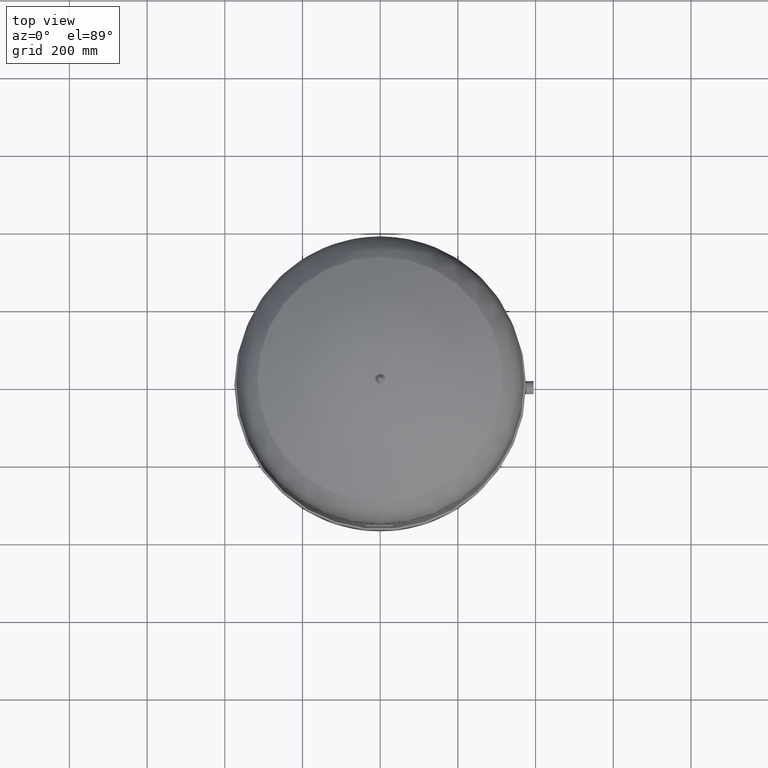
[diagram: clean part render]
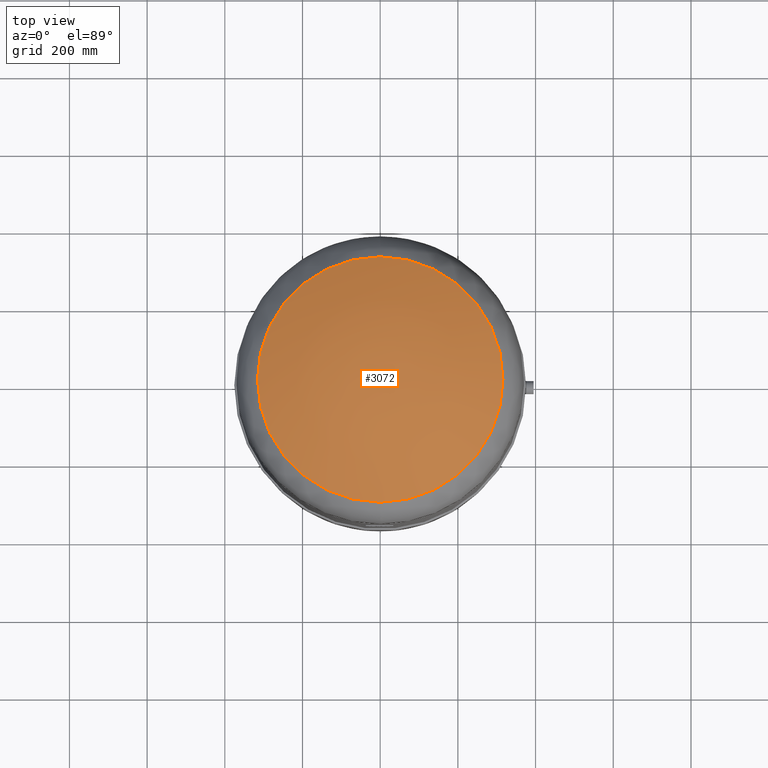
[diagram: same view with one face highlighted and labeled with its STEP entity id]
A machine part, top view. The second image highlights one B-rep face of the part: STEP entity #3072.
In plain terms, the highlighted face is a freeform B-spline surface patch.
Its self-contained STEP definition (entity closure, byte-faithful):
#2998=CARTESIAN_POINT('',(0.0,-315.931034482758610,1439.014494274920500));
#2999=VERTEX_POINT('',#2998);
#3017=CARTESIAN_POINT('',(-3.868912E-014,315.931034482758610,1439.014494274920300));
#3018=VERTEX_POINT('',#3017);
#3026=CARTESIAN_POINT('',(0.0,-1.671377E-014,1439.014494274920500));
#3027=DIRECTION('',(0.0,0.0,1.0));
#3028=DIRECTION('',(-1.0,0.0,0.0));
#3029=AXIS2_PLACEMENT_3D('',#3026,#3027,#3028);
#3030=CIRCLE('',#3029,315.931034482758610);
#3031=EDGE_CURVE('',#2999,#3018,#3030,.T.);
#3036=CARTESIAN_POINT('',(-267.538534572554340,315.931034482758550,1361.965625337801400));
#3037=CARTESIAN_POINT('',(-373.076793250796750,0.0,1530.0));
#3038=CARTESIAN_POINT('',(-267.538534572554340,-315.931034482758660,1361.965625337801400));
#3039=CARTESIAN_POINT('',(1.136868E-013,315.931034482758610,1530.0));
#3040=CARTESIAN_POINT('',(5.684342E-014,4.304395E-014,1764.320359700838000));
#3041=CARTESIAN_POINT('',(-5.684342E-014,-315.931034482758610,1530.0));
#3042=CARTESIAN_POINT('',(267.538534572554510,315.931034482758550,1361.965625337801400));
#3043=CARTESIAN_POINT('',(373.076793250796870,-6.310887E-030,1530.0));
#3044=CARTESIAN_POINT('',(267.538534572554340,-315.931034482758660,1361.965625337801400));
#3052=(BOUNDED_SURFACE()B_SPLINE_SURFACE(2,2,((#3036,#3039,#3042),(#3037,#3040,#3043),(#3038,#3041,#3044)),.UNSPECIFIED.,.F.,.F.,.U.)B_SPLINE_SURFACE_WITH_KNOTS((3,3),(3,3),(-0.560807789616945,0.560807789616945),(0.0,1.121615579233890),.UNSPECIFIED.)GEOMETRIC_REPRESENTATION_ITEM()RATIONAL_B_SPLINE_SURFACE(((1.0,0.846825747937576,1.0),(0.846825747937577,0.717113847370036,0.846825747937577),(1.0,0.846825747937576,1.0)))REPRESENTATION_ITEM('')SURFACE());
#3053=CARTESIAN_POINT('',(-315.931034482758610,-1.671377E-014,1439.014494274920500));
#3054=VERTEX_POINT('',#3053);
#3055=CARTESIAN_POINT('',(0.0,-1.671377E-014,1439.014494274920500));
#3056=DIRECTION('',(0.0,0.0,1.0));
#3057=DIRECTION('',(-1.0,0.0,0.0));
#3058=AXIS2_PLACEMENT_3D('',#3055,#3056,#3057);
#3059=CIRCLE('',#3058,315.931034482758610);
#3060=EDGE_CURVE('',#3054,#2999,#3059,.T.);
#3061=ORIENTED_EDGE('',*,*,#3060,.T.);
#3062=ORIENTED_EDGE('',*,*,#3031,.T.);
#3063=CARTESIAN_POINT('',(0.0,-1.671377E-014,1439.014494274920500));
#3064=DIRECTION('',(0.0,0.0,1.0));
#3065=DIRECTION('',(-1.0,0.0,0.0));
#3066=AXIS2_PLACEMENT_3D('',#3063,#3064,#3065);
#3067=CIRCLE('',#3066,315.931034482758610);
#3068=EDGE_CURVE('',#3018,#3054,#3067,.T.);
#3069=ORIENTED_EDGE('',*,*,#3068,.T.);
#3070=EDGE_LOOP('',(#3061,#3062,#3069));
#3071=FACE_OUTER_BOUND('',#3070,.T.);
#3072=ADVANCED_FACE('',(#3071),#3052,.T.);